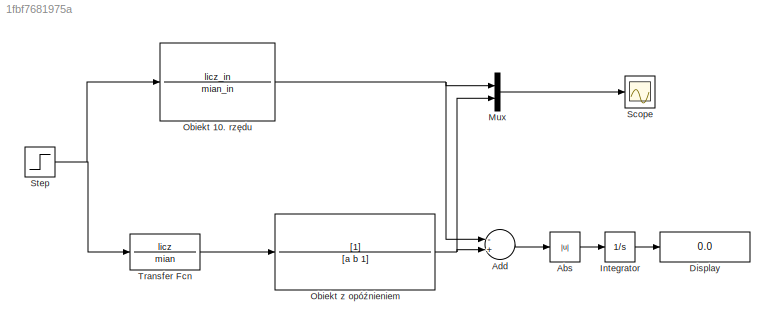
MODEL slx_1fbf7681975a
KIND model
CONFIG AbsTol = auto
CONFIG EnableMultiTasking = off
CONFIG FixedStep = auto
CONFIG MaxStep = auto
CONFIG MinStep = auto
CONFIG RelTol = 1e-3
CONFIG SampleTimeConstraint = Unconstrained
CONFIG Solver = VariableStepAuto
CONFIG SolverName = VariableStepAuto
CONFIG StartTime = 0.0
CONFIG StopTime = 10.0
BLOCK [Abs] Abs
  SaturateOnIntegerOverflow = off
BLOCK [Sum] Add
  InputSameDT = off
  Inputs = -+
  OutDataTypeStr = Inherit: Inherit via internal rule
  Ports = [2, 1]
  SaturateOnIntegerOverflow = off
BLOCK [Display] Display
  Decimation = 1
  Ports = [1]
BLOCK [Integrator] Integrator
  Ports = [1, 1]
BLOCK [Mux] Mux
  DisplayOption = bar
  Inputs = 2
  Ports = [2, 1]
BLOCK [TransferFcn] Obiekt 10. rzędu
  Denominator = mian_in
  Numerator = licz_in
BLOCK [TransferFcn] Obiekt z opóźnieniem
  Denominator = [a b 1]
BLOCK [Scope] Scope
  Floating = off
  NumInputPorts = 1
  Ports = [1]
  ScopeSpecificationString = Simulink.scopes.TimeScopeBlockCfg('CurrentConfiguration', extmgr.ConfigurationSet(extmgr.Configuration('Core','General UI',true),extmgr.Configuration('Core','Source UI',true),extmgr.Configuration('Sources','WiredSimulink',true),extmgr.Configuration('Visuals','Time Domain',true,'SerializedDisplays',{struct('MinYLimReal','-0.12997','MaxYLimReal','1.14065','YLabelReal','','MinYLimMag','0.00000','MaxY...<+1416ch>
BLOCK [Step] Step
  SampleTime = 0
  Time = 0
BLOCK [TransferFcn] Transfer Fcn
  Denominator = mian
  Numerator = licz
LINE Abs:1 -> Integrator:1
LINE Add:1 -> Abs:1
LINE Integrator:1 -> Display:1
LINE Mux:1 -> Scope:1
NET Obiekt 10. rzędu:1 -> Add:1, Mux:1
NET Obiekt z opóźnieniem:1 -> Add:2, Mux:2
NET Step:1 -> Obiekt 10. rzędu:1, Transfer Fcn:1
LINE Transfer Fcn:1 -> Obiekt z opóźnieniem:1
note: NET lines group one-source signal fan-out (src -> all destinations, sorted); 1:1 wires keep LINE
